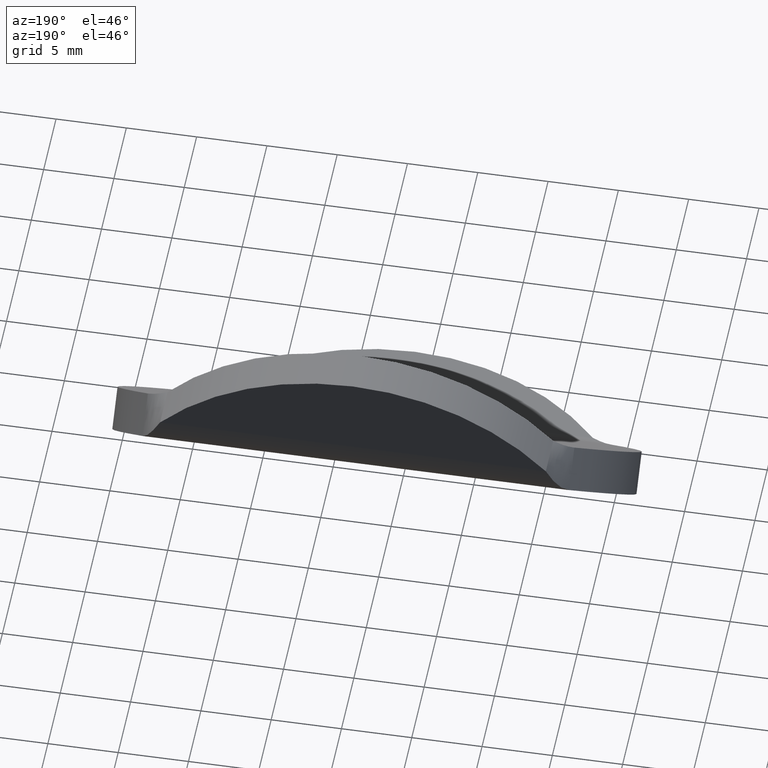
[diagram: clean part render]
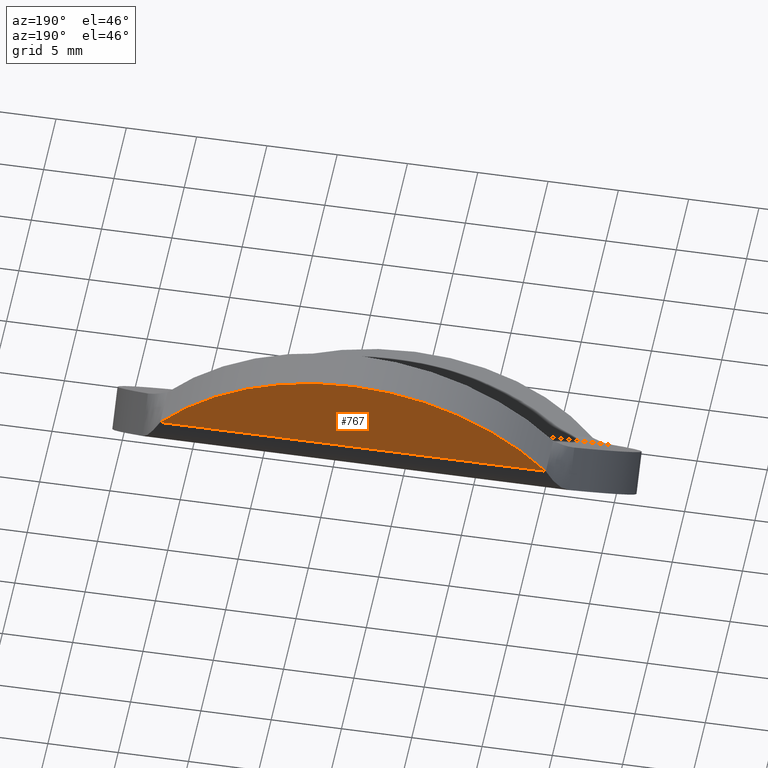
[diagram: same view with one face highlighted and labeled with its STEP entity id]
A machine part, auxiliary view. The second image highlights one B-rep face of the part: STEP entity #767.
In plain terms, the highlighted planar face has unit normal (0, 1, 0).
Its self-contained STEP definition (entity closure, byte-faithful):
#710=CARTESIAN_POINT('',(6.942244869217999,11.607294745474126,18.975019915224674));
#711=VERTEX_POINT('',#710);
#735=CARTESIAN_POINT('',(34.380578876254532,11.607294745474128,18.975019915224671));
#736=VERTEX_POINT('',#735);
#743=CARTESIAN_POINT('',(20.661411872736263,11.607294745474128,6.563958045683631));
#744=DIRECTION('',(0.0,1.0,0.0));
#745=DIRECTION('',(-1.0,0.0,0.0));
#746=AXIS2_PLACEMENT_3D('',#743,#744,#745);
#747=CIRCLE('',#746,18.500000000000000);
#748=EDGE_CURVE('',#711,#736,#747,.T.);
#753=CARTESIAN_POINT('',(20.661411872736263,11.607294745474128,6.563958045683631));
#754=DIRECTION('',(0.0,1.0,0.0));
#755=DIRECTION('',(-1.0,0.0,0.0));
#756=AXIS2_PLACEMENT_3D('',#753,#754,#755);
#757=PLANE('',#756);
#758=CARTESIAN_POINT('',(34.380578876254532,11.607294745474128,18.975019915224671));
#759=DIRECTION('',(-1.0,0.0,0.0));
#760=VECTOR('',#759,27.438334007036534);
#761=LINE('',#758,#760);
#762=EDGE_CURVE('',#736,#711,#761,.T.);
#763=ORIENTED_EDGE('',*,*,#762,.T.);
#764=ORIENTED_EDGE('',*,*,#748,.T.);
#765=EDGE_LOOP('',(#763,#764));
#766=FACE_OUTER_BOUND('',#765,.T.);
#767=ADVANCED_FACE('',(#766),#757,.T.);